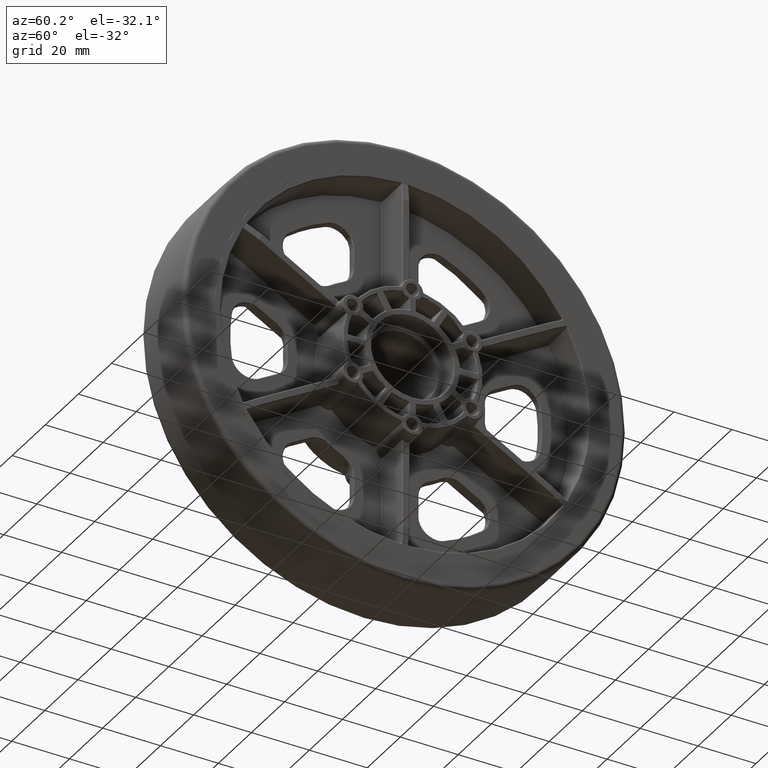
[diagram: clean part render]
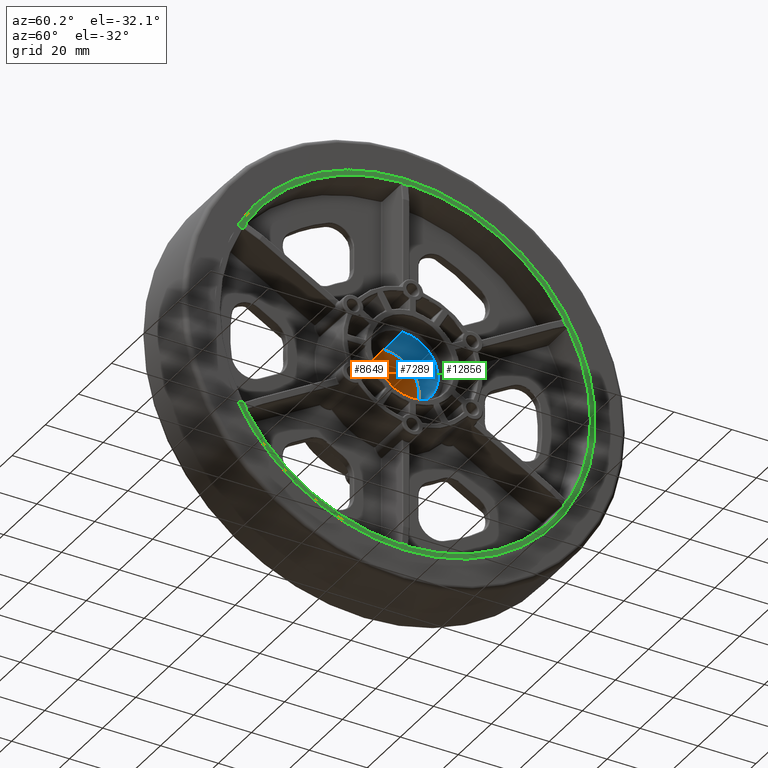
[diagram: same view with three faces highlighted in distinct colors, each labeled with its STEP entity id]
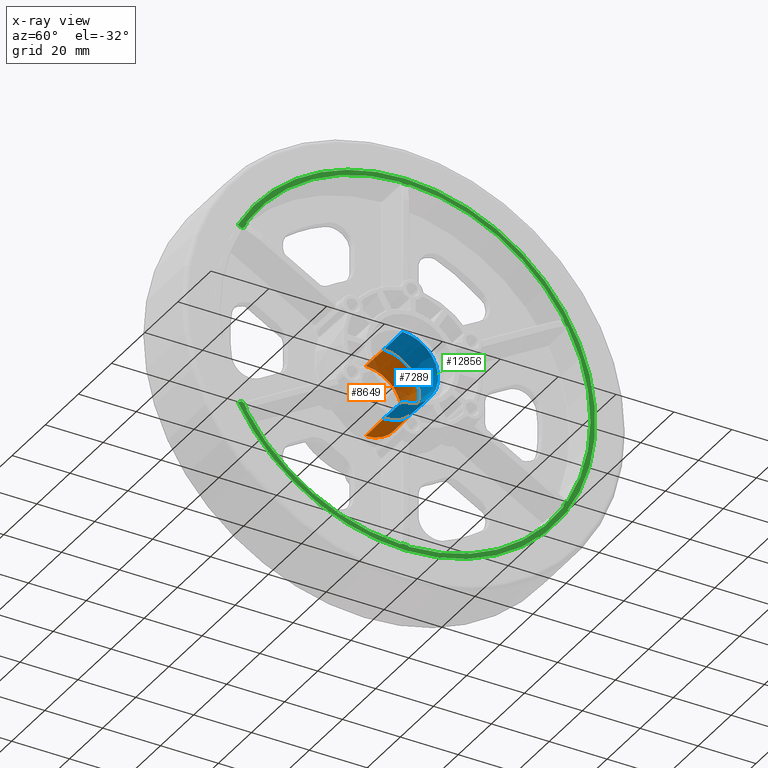
[diagram: x-ray of the same camera — body ghosted, the three highlighted faces saturated]
A machine part, auxiliary view with three faces highlighted in distinct colors.
The next image is the same camera in x-ray (body ghosted, the three faces saturated) — at least one of them is partly hidden behind the body in this view.
Their STEP definitions:

[orange] entity #8649 — the highlighted conical surface has half-angle 1 deg.
#264 = ORIENTED_EDGE ( 'NONE', *, *, #36902, .F. ) ;
#1474 = EDGE_CURVE ( 'NONE', #16485, #14684, #23789, .T. ) ;
#4276 = DIRECTION ( 'NONE',  ( -0.9998476951563912696, 0.0000000000000000000, -0.01745240643728354982 ) ) ;
#4451 = VERTEX_POINT ( 'NONE', #51529 ) ;
#4613 = CARTESIAN_POINT ( 'NONE',  ( 0.0000000000000000000, 0.0000000000000000000, 0.0000000000000000000 ) ) ;
#8212 = CARTESIAN_POINT ( 'NONE',  ( 0.0000000000000000000, 0.0000000000000000000, 0.0000000000000000000 ) ) ;
#8649 = ADVANCED_FACE ( 'NONE', ( #32223 ), #51179, .F. ) ;
#8663 = DIRECTION ( 'NONE',  ( 0.0000000000000000000, 0.0000000000000000000, -1.000000000000000000 ) ) ;
#11126 = CARTESIAN_POINT ( 'NONE',  ( -0.4374999999999998890, 0.0000000000000000000, 0.0000000000000000000 ) ) ;
#11814 = CIRCLE ( 'NONE', #37009, 0.4799999999999999822 ) ;
#11953 = ORIENTED_EDGE ( 'NONE', *, *, #1474, .F. ) ;
#12287 = DIRECTION ( 'NONE',  ( 0.0000000000000000000, 0.0000000000000000000, -1.000000000000000000 ) ) ;
#13447 = VERTEX_POINT ( 'NONE', #32547 ) ;
#14130 = LINE ( 'NONE', #48083, #33174 ) ;
#14684 = VERTEX_POINT ( 'NONE', #52382 ) ;
#15259 = DIRECTION ( 'NONE',  ( 0.0000000000000000000, 0.0000000000000000000, 1.000000000000000000 ) ) ;
#16485 = VERTEX_POINT ( 'NONE', #21773 ) ;
#19005 = LINE ( 'NONE', #28630, #31048 ) ;
#21773 = CARTESIAN_POINT ( 'NONE',  ( -0.4374999999999998890, 0.0000000000000000000, -0.4876365909060952353 ) ) ;
#23789 = CIRCLE ( 'NONE', #43391, 0.4876365909060952353 ) ;
#25049 = DIRECTION ( 'NONE',  ( -1.000000000000000000, -0.0000000000000000000, -0.0000000000000000000 ) ) ;
#28630 = CARTESIAN_POINT ( 'NONE',  ( 0.0000000000000000000, 0.0000000000000000000, -0.4799999999999999822 ) ) ;
#30900 = EDGE_LOOP ( 'NONE', ( #43871, #51825, #11953, #264 ) ) ;
#31048 = VECTOR ( 'NONE', #4276, 39.37007874015748143 ) ;
#32223 = FACE_OUTER_BOUND ( 'NONE', #30900, .T. ) ;
#32547 = CARTESIAN_POINT ( 'NONE',  ( 0.0000000000000000000, 0.0000000000000000000, -0.4799999999999999822 ) ) ;
#33174 = VECTOR ( 'NONE', #36077, 39.37007874015748143 ) ;
#36077 = DIRECTION ( 'NONE',  ( -0.9998476951563912696, -2.137303368083796319E-18, 0.01745240643728354982 ) ) ;
#36543 = AXIS2_PLACEMENT_3D ( 'NONE', #4613, #25049, #8663 ) ;
#36629 = DIRECTION ( 'NONE',  ( 1.000000000000000000, -0.0000000000000000000, 0.0000000000000000000 ) ) ;
#36902 = EDGE_CURVE ( 'NONE', #13447, #16485, #19005, .T. ) ;
#37009 = AXIS2_PLACEMENT_3D ( 'NONE', #8212, #36629, #12287 ) ;
#39183 = EDGE_CURVE ( 'NONE', #13447, #4451, #11814, .T. ) ;
#39515 = DIRECTION ( 'NONE',  ( 1.000000000000000000, -0.0000000000000000000, -0.0000000000000000000 ) ) ;
#43391 = AXIS2_PLACEMENT_3D ( 'NONE', #11126, #39515, #15259 ) ;
#43871 = ORIENTED_EDGE ( 'NONE', *, *, #39183, .T. ) ;
#48083 = CARTESIAN_POINT ( 'NONE',  ( 0.0000000000000000000, -5.878304635907294704E-17, 0.4799999999999999822 ) ) ;
#48572 = EDGE_CURVE ( 'NONE', #4451, #14684, #14130, .T. ) ;
#51179 = CONICAL_SURFACE ( 'NONE', #36543, 0.4799999999999999822, 0.01745329251994333364 ) ;
#51529 = CARTESIAN_POINT ( 'NONE',  ( 0.0000000000000000000, -5.925065268955031576E-17, 0.4799999999999999822 ) ) ;
#51825 = ORIENTED_EDGE ( 'NONE', *, *, #48572, .T. ) ;
#52382 = CARTESIAN_POINT ( 'NONE',  ( -0.4374999999999998890, -5.971825902002768447E-17, 0.4876365909060952353 ) ) ;

[blue] entity #7289 — the highlighted conical surface has half-angle 1 deg.
#3 = CARTESIAN_POINT ( 'NONE',  ( 0.0000000000000000000, 0.0000000000000000000, -0.4799999999999999822 ) ) ;
#1350 = EDGE_CURVE ( 'NONE', #44398, #26341, #47837, .T. ) ;
#2063 = EDGE_LOOP ( 'NONE', ( #35900, #29623, #36230, #15353 ) ) ;
#3139 = DIRECTION ( 'NONE',  ( 0.9998476951563912696, 2.137303368083796319E-18, 0.01745240643728354982 ) ) ;
#4451 = VERTEX_POINT ( 'NONE', #51529 ) ;
#4604 = CARTESIAN_POINT ( 'NONE',  ( 0.4374999999999998890, 0.0000000000000000000, -0.4876365909060952353 ) ) ;
#4738 = CARTESIAN_POINT ( 'NONE',  ( 0.4374999999999998890, 5.971825902002768447E-17, 0.4876365909060952353 ) ) ;
#7289 = ADVANCED_FACE ( 'NONE', ( #39266 ), #38010, .F. ) ;
#8212 = CARTESIAN_POINT ( 'NONE',  ( 0.0000000000000000000, 0.0000000000000000000, 0.0000000000000000000 ) ) ;
#10254 = CARTESIAN_POINT ( 'NONE',  ( 0.4374999999999998890, 0.0000000000000000000, 0.0000000000000000000 ) ) ;
#11528 = VECTOR ( 'NONE', #3139, 39.37007874015748143 ) ;
#11814 = CIRCLE ( 'NONE', #37009, 0.4799999999999999822 ) ;
#12287 = DIRECTION ( 'NONE',  ( 0.0000000000000000000, 0.0000000000000000000, -1.000000000000000000 ) ) ;
#13447 = VERTEX_POINT ( 'NONE', #32547 ) ;
#13510 = AXIS2_PLACEMENT_3D ( 'NONE', #10254, #38635, #14357 ) ;
#14357 = DIRECTION ( 'NONE',  ( 0.0000000000000000000, 0.0000000000000000000, -1.000000000000000000 ) ) ;
#15353 = ORIENTED_EDGE ( 'NONE', *, *, #1350, .T. ) ;
#17203 = DIRECTION ( 'NONE',  ( 1.000000000000000000, 0.0000000000000000000, 0.0000000000000000000 ) ) ;
#18345 = LINE ( 'NONE', #3, #39883 ) ;
#22393 = LINE ( 'NONE', #51503, #11528 ) ;
#24798 = EDGE_CURVE ( 'NONE', #4451, #26341, #22393, .T. ) ;
#26341 = VERTEX_POINT ( 'NONE', #4738 ) ;
#29623 = ORIENTED_EDGE ( 'NONE', *, *, #39183, .F. ) ;
#32547 = CARTESIAN_POINT ( 'NONE',  ( 0.0000000000000000000, 0.0000000000000000000, -0.4799999999999999822 ) ) ;
#33148 = CARTESIAN_POINT ( 'NONE',  ( 0.0000000000000000000, 0.0000000000000000000, 0.0000000000000000000 ) ) ;
#35900 = ORIENTED_EDGE ( 'NONE', *, *, #24798, .F. ) ;
#36230 = ORIENTED_EDGE ( 'NONE', *, *, #50941, .T. ) ;
#36629 = DIRECTION ( 'NONE',  ( 1.000000000000000000, -0.0000000000000000000, 0.0000000000000000000 ) ) ;
#37009 = AXIS2_PLACEMENT_3D ( 'NONE', #8212, #36629, #12287 ) ;
#38010 = CONICAL_SURFACE ( 'NONE', #40870, 0.4799999999999999822, 0.01745329251994333364 ) ;
#38635 = DIRECTION ( 'NONE',  ( 1.000000000000000000, 0.0000000000000000000, 0.0000000000000000000 ) ) ;
#39183 = EDGE_CURVE ( 'NONE', #13447, #4451, #11814, .T. ) ;
#39266 = FACE_OUTER_BOUND ( 'NONE', #2063, .T. ) ;
#39883 = VECTOR ( 'NONE', #40608, 39.37007874015748143 ) ;
#40608 = DIRECTION ( 'NONE',  ( 0.9998476951563912696, 0.0000000000000000000, -0.01745240643728354982 ) ) ;
#40870 = AXIS2_PLACEMENT_3D ( 'NONE', #33148, #17203, #45542 ) ;
#44398 = VERTEX_POINT ( 'NONE', #4604 ) ;
#45542 = DIRECTION ( 'NONE',  ( 0.0000000000000000000, 0.0000000000000000000, -1.000000000000000000 ) ) ;
#47837 = CIRCLE ( 'NONE', #13510, 0.4876365909060952353 ) ;
#50941 = EDGE_CURVE ( 'NONE', #13447, #44398, #18345, .T. ) ;
#51503 = CARTESIAN_POINT ( 'NONE',  ( 0.0000000000000000000, 5.878304635907294704E-17, 0.4799999999999999822 ) ) ;
#51529 = CARTESIAN_POINT ( 'NONE',  ( 0.0000000000000000000, -5.925065268955031576E-17, 0.4799999999999999822 ) ) ;

[green] entity #12856 — the highlighted planar face has unit normal (1, 0, 0).
#282 = CARTESIAN_POINT ( 'NONE',  ( 0.4999999999999998335, -2.156120226398902773, -1.307968000228008076 ) ) ;
#516 = EDGE_CURVE ( 'NONE', #50678, #34053, #28824, .T. ) ;
#575 = CARTESIAN_POINT ( 'NONE',  ( 0.4999999999999998335, -2.156119114459182473, 1.307987119954001631 ) ) ;
#832 = VERTEX_POINT ( 'NONE', #46297 ) ;
#839 = LINE ( 'NONE', #16447, #21207 ) ;
#1010 = CARTESIAN_POINT ( 'NONE',  ( 0.5000000000000001110, 2.195117347029624355, 1.220069078591785150 ) ) ;
#1276 = DIRECTION ( 'NONE',  ( -0.0000000000000000000, -0.5000000000000041078, 0.8660254037844363761 ) ) ;
#1332 = ORIENTED_EDGE ( 'NONE', *, *, #41671, .T. ) ;
#1367 = CARTESIAN_POINT ( 'NONE',  ( 0.5000000000000001110, -0.03525954105326465499, -2.508727532464108290 ) ) ;
#1370 = CIRCLE ( 'NONE', #42549, 2.591272467535891355 ) ;
#1538 = VERTEX_POINT ( 'NONE', #11461 ) ;
#1586 = VERTEX_POINT ( 'NONE', #44100 ) ;
#1609 = ORIENTED_EDGE ( 'NONE', *, *, #22883, .T. ) ;
#1665 = CARTESIAN_POINT ( 'NONE',  ( 0.5000000000000001110, 2.154462574500342065, 1.285816422887976485 ) ) ;
#1739 = CARTESIAN_POINT ( 'NONE',  ( 0.5000000000000001110, -2.150995815003495792, -1.286226182109982075 ) ) ;
#1809 = CARTESIAN_POINT ( 'NONE',  ( 0.5000000000000001110, -2.189402456221633653, -1.219703928172100271 ) ) ;
#1891 = CARTESIAN_POINT ( 'NONE',  ( 0.5000000000000001110, 2.217674207759096294, -1.204081314494640731 ) ) ;
#2197 = CARTESIAN_POINT ( 'NONE',  ( 0.5000000000000001110, -2.154992003760747732, 1.284899424509941879 ) ) ;
#2226 = CARTESIAN_POINT ( 'NONE',  ( 0.5000000000000001110, -2.172621774287353258, -1.254363766232079458 ) ) ;
#2257 = ORIENTED_EDGE ( 'NONE', *, *, #26386, .T. ) ;
#2274 = EDGE_CURVE ( 'NONE', #49886, #49392, #839, .T. ) ;
#2316 = LINE ( 'NONE', #2226, #42916 ) ;
#2445 = CARTESIAN_POINT ( 'NONE',  ( 0.5000000000000001110, 2.190251544814002749, -1.223828107954141320 ) ) ;
#2804 = ORIENTED_EDGE ( 'NONE', *, *, #24986, .T. ) ;
#3152 = CARTESIAN_POINT ( 'NONE',  ( 0.5000000000000001110, 0.06607209730502379419, -2.522602858484227273 ) ) ;
#3246 = CARTESIAN_POINT ( 'NONE',  ( 0.4999999999999998335, -0.05469051647344128075, -2.521247486683859229 ) ) ;
#3389 = EDGE_CURVE ( 'NONE', #17939, #9267, #21219, .T. ) ;
#3399 = DIRECTION ( 'NONE',  ( 1.000000000000000000, 0.0000000000000000000, 0.0000000000000000000 ) ) ;
#3451 = DIRECTION ( 'NONE',  ( -1.000000000000000000, -0.0000000000000000000, -0.0000000000000000000 ) ) ;
#3551 = CARTESIAN_POINT ( 'NONE',  ( 0.4999999999999998335, -2.200886059498011527, 1.218755255216299682 ) ) ;
#3945 = CARTESIAN_POINT ( 'NONE',  ( 0.5000000000000001110, -2.151602110454054806, -1.318521543989606748 ) ) ;
#4022 = DIRECTION ( 'NONE',  ( 0.0000000000000000000, 0.0000000000000000000, -1.000000000000000000 ) ) ;
#4165 = ORIENTED_EDGE ( 'NONE', *, *, #19998, .T. ) ;
#4185 = CARTESIAN_POINT ( 'NONE',  ( 0.5000000000000001110, 2.154598241549437798, 1.313632369430869140 ) ) ;
#4353 = CARTESIAN_POINT ( 'NONE',  ( 0.5000000000000001110, -2.154173734927134376, -1.290999223219661429 ) ) ;
#4658 = CARTESIAN_POINT ( 'NONE',  ( 0.5000000000000001110, -2.151602110454079675, 1.318521543989566558 ) ) ;
#4781 = VERTEX_POINT ( 'NONE', #51244 ) ;
#4878 = EDGE_CURVE ( 'NONE', #47271, #18611, #1370, .T. ) ;
#4989 = CARTESIAN_POINT ( 'NONE',  ( 0.5000000000000001110, -0.03525954105326465499, 2.508727532464108290 ) ) ;
#5187 = AXIS2_PLACEMENT_3D ( 'NONE', #9103, #37518, #13196 ) ;
#5213 = CARTESIAN_POINT ( 'NONE',  ( 0.5000000000000001110, 0.03840664121813733289, 2.505930110282031276 ) ) ;
#5532 = DIRECTION ( 'NONE',  ( -0.0000000000000000000, 1.000000000000000000, -0.0000000000000000000 ) ) ;
#5715 = VERTEX_POINT ( 'NONE', #43987 ) ;
#5795 = CARTESIAN_POINT ( 'NONE',  ( 0.5000000000000001110, -2.154992003760720642, -1.284899424509986732 ) ) ;
#5889 = CARTESIAN_POINT ( 'NONE',  ( 0.4999999999999998335, -2.200883519896847940, -1.218758323528691401 ) ) ;
#5998 = CARTESIAN_POINT ( 'NONE',  ( 0.5000000000000001110, 0.03525954105326465499, -2.508727532464108290 ) ) ;
#6045 = EDGE_CURVE ( 'NONE', #16631, #42178, #10725, .T. ) ;
#6449 = VERTEX_POINT ( 'NONE', #38071 ) ;
#6550 = CARTESIAN_POINT ( 'NONE',  ( 0.5000000000000001110, -0.06607209730502379419, 2.522602858484227273 ) ) ;
#6838 = ORIENTED_EDGE ( 'NONE', *, *, #40753, .F. ) ;
#6948 = VERTEX_POINT ( 'NONE', #17079 ) ;
#6952 = CARTESIAN_POINT ( 'NONE',  ( 0.5000000000000001110, 2.151602110454063244, 1.318521543989591871 ) ) ;
#7232 = CARTESIAN_POINT ( 'NONE',  ( 0.5000000000000001110, 0.04095125611060734111, -2.511068790221935298 ) ) ;
#7313 = CARTESIAN_POINT ( 'NONE',  ( 0.5000000000000001110, -0.03525954105326465499, -2.508727532464108290 ) ) ;
#7325 = CARTESIAN_POINT ( 'NONE',  ( 0.5000000000000001110, -0.06607209730502933143, -2.522602858484226829 ) ) ;
#7389 = DIRECTION ( 'NONE',  ( -0.0000000000000000000, 0.4999999999999979461, 0.8660254037844397068 ) ) ;
#7550 = ORIENTED_EDGE ( 'NONE', *, *, #45429, .T. ) ;
#7610 = CARTESIAN_POINT ( 'NONE',  ( 0.5000000000000001110, -2.189402456221659410, 1.219703928172054308 ) ) ;
#7683 = CARTESIAN_POINT ( 'NONE',  ( 0.5000000000000001110, 0.0000000000000000000, 0.0000000000000000000 ) ) ;
#7824 = ORIENTED_EDGE ( 'NONE', *, *, #28652, .T. ) ;
#7970 = CARTESIAN_POINT ( 'NONE',  ( 0.5000000000000001110, -2.189402456221633653, -1.219703928172100271 ) ) ;
#8008 = EDGE_CURVE ( 'NONE', #6948, #49392, #40293, .T. ) ;
#8069 = DIRECTION ( 'NONE',  ( -0.0000000000000000000, -1.000000000000000000, -0.0000000000000000000 ) ) ;
#8129 = VECTOR ( 'NONE', #5532, 39.37007874015748143 ) ;
#8187 = CARTESIAN_POINT ( 'NONE',  ( 0.4999999999999998335, -0.05467340233510467606, 2.521238889788908644 ) ) ;
#8216 = CARTESIAN_POINT ( 'NONE',  ( 0.5000000000000001110, 2.154169489947168170, -1.290992847519669029 ) ) ;
#8529 = ORIENTED_EDGE ( 'NONE', *, *, #3389, .F. ) ;
#8939 = EDGE_CURVE ( 'NONE', #50792, #21099, #43592, .T. ) ;
#9097 = CARTESIAN_POINT ( 'NONE',  ( 0.5000000000000001110, 0.03525954105326465499, 2.508727532464108290 ) ) ;
#9103 = CARTESIAN_POINT ( 'NONE',  ( 0.5000000000000001110, 0.0000000000000000000, 0.0000000000000000000 ) ) ;
#9267 = VERTEX_POINT ( 'NONE', #10712 ) ;
#9485 = CARTESIAN_POINT ( 'NONE',  ( 0.5000000000000001110, -2.190251544814011631, 1.223828107954126665 ) ) ;
#9956 = CARTESIAN_POINT ( 'NONE',  ( 0.5000000000000001110, -2.214941776302582266, -1.209113900494142246 ) ) ;
#10347 = CARTESIAN_POINT ( 'NONE',  ( 0.5000000000000001110, -2.153125537943494816, 1.286260326697566736 ) ) ;
#10382 =( BOUNDED_CURVE ( )  B_SPLINE_CURVE ( 3, ( #17895, #46214, #30112, #5795 ),
 .UNSPECIFIED., .F., .F. ) 
 B_SPLINE_CURVE_WITH_KNOTS ( ( 4, 4 ),
 ( 6.071808074703849201, 6.283185307179586232 ),
 .UNSPECIFIED. ) 
 CURVE ( )  GEOMETRIC_REPRESENTATION_ITEM ( )  RATIONAL_B_SPLINE_CURVE ( ( 1.000000000000000000, 0.9962801033636937698, 0.9962801033636937698, 1.000000000000000000 ) ) 
 REPRESENTATION_ITEM ( '' )  );
#10399 = ORIENTED_EDGE ( 'NONE', *, *, #35344, .T. ) ;
#10469 = CARTESIAN_POINT ( 'NONE',  ( 0.5000000000000001110, 2.189402456221642534, 1.219703928172084728 ) ) ;
#10537 = CARTESIAN_POINT ( 'NONE',  ( 0.5000000000000001110, -1.365923996832131609E-15, -2.458663194297837094E-15 ) ) ;
#10712 = CARTESIAN_POINT ( 'NONE',  ( 0.5000000000000001110, -2.190251544814011631, 1.223828107954126665 ) ) ;
#10725 = B_SPLINE_CURVE_WITH_KNOTS ( 'NONE', 3,
 ( #42342, #30151, #34238, #18111, #46424, #22194 ),
 .UNSPECIFIED., .F., .F.,
 ( 4, 2, 4 ),
 ( 1.084202172485504434E-18, 0.0004317745016532645048, 0.0008635490033065279254 ),
 .UNSPECIFIED. ) ;
#11017 = ORIENTED_EDGE ( 'NONE', *, *, #8008, .T. ) ;
#11091 = ORIENTED_EDGE ( 'NONE', *, *, #48907, .T. ) ;
#11134 = VECTOR ( 'NONE', #38918, 39.37007874015748854 ) ;
#11235 = B_SPLINE_CURVE_WITH_KNOTS ( 'NONE', 3,
 ( #24578, #4185, #12336, #40716, #16452, #44785 ),
 .UNSPECIFIED., .F., .F.,
 ( 4, 2, 4 ),
 ( 9.813077866773594792E-18, 0.0004369434395104968114, 0.0008738868790209838649 ),
 .UNSPECIFIED. ) ;
#11385 = LINE ( 'NONE', #37802, #20989 ) ;
#11461 = CARTESIAN_POINT ( 'NONE',  ( 0.5000000000000001110, 2.190251544813994311, 1.223828107954156863 ) ) ;
#11705 = CARTESIAN_POINT ( 'NONE',  ( 0.5000000000000001110, 2.150995815003514000, -1.286226182109952987 ) ) ;
#11778 = DIRECTION ( 'NONE',  ( 0.0000000000000000000, 0.0000000000000000000, -1.000000000000000000 ) ) ;
#12266 = CARTESIAN_POINT ( 'NONE',  ( 0.5000000000000001110, -0.04095125611060734111, 2.511068790221935298 ) ) ;
#12326 = CARTESIAN_POINT ( 'NONE',  ( 0.5000000000000001110, -2.151602110454054806, -1.318521543989606748 ) ) ;
#12336 = CARTESIAN_POINT ( 'NONE',  ( 0.4999999999999998335, 2.156120226398911655, 1.307968000227992755 ) ) ;
#12390 = LINE ( 'NONE', #10537, #11134 ) ;
#12621 = CARTESIAN_POINT ( 'NONE',  ( 0.5000000000000001110, -2.150995815003522882, 1.286226182109937666 ) ) ;
#12856 = ADVANCED_FACE ( 'NONE', ( #28097 ), #14159, .T. ) ;
#13167 = EDGE_LOOP ( 'NONE', ( #15434, #49312, #14445, #51859, #13669, #2804, #8529, #13224, #35486, #15093, #32041, #11017, #37017, #25601, #49209, #49373, #27564, #7824, #6838, #14934, #2257, #4165, #17796, #11091, #49691, #41205, #1609, #52571, #43165, #17310, #41761, #1332, #10399, #7550, #22696, #43130, #39361, #30511, #50134, #45609 ) ) ;
#13196 = DIRECTION ( 'NONE',  ( 0.0000000000000000000, 0.0000000000000000000, -1.000000000000000000 ) ) ;
#13224 = ORIENTED_EDGE ( 'NONE', *, *, #41543, .T. ) ;
#13338 = CARTESIAN_POINT ( 'NONE',  ( 0.5000000000000001110, -2.217674207759082528, -1.204081314494666266 ) ) ;
#13639 = CARTESIAN_POINT ( 'NONE',  ( 0.5000000000000001110, -2.190496887771907986, -1.221531250047323214 ) ) ;
#13669 = ORIENTED_EDGE ( 'NONE', *, *, #23232, .T. ) ;
#14124 = CARTESIAN_POINT ( 'NONE',  ( 0.4999999999999998335, 2.210793628734025074, -1.213270889560921217 ) ) ;
#14159 = PLANE ( 'NONE',  #28953 ) ;
#14441 = B_SPLINE_CURVE_WITH_KNOTS ( 'NONE', 3,
 ( #1891, #26245, #14124, #42482, #18239, #46560 ),
 .UNSPECIFIED., .F., .F.,
 ( 4, 2, 4 ),
 ( 3.469446951953614189E-18, 0.0004369434395104807110, 0.0008738868790209579525 ),
 .UNSPECIFIED. ) ;
#14445 = ORIENTED_EDGE ( 'NONE', *, *, #23158, .T. ) ;
#14805 = B_SPLINE_CURVE_WITH_KNOTS ( 'NONE', 3,
 ( #3152, #39514, #19348, #31558, #7232, #35650 ),
 .UNSPECIFIED., .F., .F.,
 ( 4, 2, 4 ),
 ( 0.0000000000000000000, 0.0004369434395104867825, 0.0008738868790209735650 ),
 .UNSPECIFIED. ) ;
#14934 = ORIENTED_EDGE ( 'NONE', *, *, #24267, .T. ) ;
#15093 = ORIENTED_EDGE ( 'NONE', *, *, #44251, .T. ) ;
#15157 = B_SPLINE_CURVE_WITH_KNOTS ( 'NONE', 3,
 ( #1809, #30201, #5889, #34292, #9956, #38352 ),
 .UNSPECIFIED., .F., .F.,
 ( 4, 2, 4 ),
 ( 0.0000000000000000000, 0.0004317745016532628785, 0.0008635490033065257569 ),
 .UNSPECIFIED. ) ;
#15172 = EDGE_CURVE ( 'NONE', #49886, #16631, #52288, .T. ) ;
#15321 = VERTEX_POINT ( 'NONE', #19077 ) ;
#15352 = CARTESIAN_POINT ( 'NONE',  ( 0.5000000000000001110, -0.03840664121813733289, -2.505930110282031276 ) ) ;
#15434 = ORIENTED_EDGE ( 'NONE', *, *, #4878, .T. ) ;
#15479 = CARTESIAN_POINT ( 'NONE',  ( 0.5000000000000001110, 0.0000000000000000000, 0.0000000000000000000 ) ) ;
#15512 = CARTESIAN_POINT ( 'NONE',  ( 0.5000000000000001110, -0.03840664121813733289, -2.505930110282031276 ) ) ;
#15654 = CARTESIAN_POINT ( 'NONE',  ( 0.5000000000000001110, -2.217674207759105176, 1.204081314494625188 ) ) ;
#15692 = VERTEX_POINT ( 'NONE', #51026 ) ;
#15732 = VERTEX_POINT ( 'NONE', #6550 ) ;
#15780 = EDGE_CURVE ( 'NONE', #51939, #47271, #48139, .T. ) ;
#15816 = VECTOR ( 'NONE', #47672, 39.37007874015748854 ) ;
#16024 = CARTESIAN_POINT ( 'NONE',  ( 0.5000000000000001110, 2.151602110454069905, -1.318521543989581213 ) ) ;
#16256 = CIRCLE ( 'NONE', #44867, 2.523467991410843769 ) ;
#16408 = CARTESIAN_POINT ( 'NONE',  ( 0.5000000000000001110, 2.154594242048095687, -1.313638895934414741 ) ) ;
#16447 = CARTESIAN_POINT ( 'NONE',  ( 0.5000000000000001110, 0.0000000000000000000, 2.508727532464108290 ) ) ;
#16452 = CARTESIAN_POINT ( 'NONE',  ( 0.5000000000000001110, 2.154173734927143702, 1.290999223219646996 ) ) ;
#16483 = VERTEX_POINT ( 'NONE', #37855 ) ;
#16631 = VERTEX_POINT ( 'NONE', #41608 ) ;
#16848 = CARTESIAN_POINT ( 'NONE',  ( 0.5000000000000001110, 2.154992003760737962, -1.284899424509956312 ) ) ;
#17016 = CARTESIAN_POINT ( 'NONE',  ( 0.5000000000000001110, 0.03525954105326465499, 2.508727532464108290 ) ) ;
#17079 = CARTESIAN_POINT ( 'NONE',  ( 0.5000000000000001110, -0.03840664121813726350, 2.505930110282032164 ) ) ;
#17173 = CARTESIAN_POINT ( 'NONE',  ( 0.5000000000000001110, 2.189402456221642534, 1.219703928172084728 ) ) ;
#17278 = B_SPLINE_CURVE_WITH_KNOTS ( 'NONE', 3,
 ( #12621, #36951, #24904, #575, #28981, #4658 ),
 .UNSPECIFIED., .F., .F.,
 ( 4, 2, 4 ),
 ( 0.0000000000000000000, 0.0004317745016532525786, 0.0008635490033065051571 ),
 .UNSPECIFIED. ) ;
#17295 = CARTESIAN_POINT ( 'NONE',  ( 0.5000000000000002220, 0.03631839957403969893, 2.508727532464107401 ) ) ;
#17310 = ORIENTED_EDGE ( 'NONE', *, *, #24656, .T. ) ;
#17351 = CARTESIAN_POINT ( 'NONE',  ( 0.4999999999999998335, 2.210809630932605963, 1.213260366729847606 ) ) ;
#17796 = ORIENTED_EDGE ( 'NONE', *, *, #19067, .T. ) ;
#17895 = CARTESIAN_POINT ( 'NONE',  ( 0.5000000000000001110, -2.150995815003495792, -1.286226182109982075 ) ) ;
#17939 = VERTEX_POINT ( 'NONE', #41267 ) ;
#18013 = VERTEX_POINT ( 'NONE', #46039 ) ;
#18095 = EDGE_CURVE ( 'NONE', #50678, #15692, #2316, .T. ) ;
#18111 = CARTESIAN_POINT ( 'NONE',  ( 0.4999999999999998335, 0.05469051647344127381, 2.521247486683859229 ) ) ;
#18239 = CARTESIAN_POINT ( 'NONE',  ( 0.5000000000000001110, 2.195124991037761042, -1.220069567002294297 ) ) ;
#18611 = VERTEX_POINT ( 'NONE', #33176 ) ;
#18986 = LINE ( 'NONE', #33920, #8129 ) ;
#19029 = EDGE_CURVE ( 'NONE', #38776, #15692, #10382, .T. ) ;
#19067 = EDGE_CURVE ( 'NONE', #49480, #5715, #14441, .T. ) ;
#19077 = CARTESIAN_POINT ( 'NONE',  ( 0.5000000000000001110, -0.03840664121813733289, -2.505930110282031276 ) ) ;
#19102 = B_SPLINE_CURVE_WITH_KNOTS ( 'NONE', 3,
 ( #17173, #1010, #41614, #17351, #45691, #21468 ),
 .UNSPECIFIED., .F., .F.,
 ( 4, 2, 4 ),
 ( 1.387778780781445676E-17, 0.0004317745016532583248, 0.0008635490033065027719 ),
 .UNSPECIFIED. ) ;
#19210 = DIRECTION ( 'NONE',  ( -1.000000000000000000, -0.0000000000000000000, -0.0000000000000000000 ) ) ;
#19348 = CARTESIAN_POINT ( 'NONE',  ( 0.4999999999999998335, 0.05467340233510468300, -2.521238889788908644 ) ) ;
#19564 = DIRECTION ( 'NONE',  ( 0.0000000000000000000, 0.0000000000000000000, -1.000000000000000000 ) ) ;
#19998 = EDGE_CURVE ( 'NONE', #1586, #49480, #41734, .T. ) ;
#20160 = EDGE_CURVE ( 'NONE', #24079, #47522, #14805, .T. ) ;
#20777 = CARTESIAN_POINT ( 'NONE',  ( 0.5000000000000001110, -0.03631839957403969199, 2.508727532464108290 ) ) ;
#20989 = VECTOR ( 'NONE', #1276, 39.37007874015747433 ) ;
#21099 = VERTEX_POINT ( 'NONE', #2445 ) ;
#21134 = CARTESIAN_POINT ( 'NONE',  ( 0.5000000000000001110, 2.153125537943485490, -1.286260326697581613 ) ) ;
#21149 = CARTESIAN_POINT ( 'NONE',  ( 0.5000000000000001110, -2.190780974074372445, -1.222911109576167110 ) ) ;
#21207 = VECTOR ( 'NONE', #8069, 39.37007874015748143 ) ;
#21219 = LINE ( 'NONE', #39860, #52161 ) ;
#21455 = EDGE_CURVE ( 'NONE', #4781, #6449, #12390, .T. ) ;
#21468 = CARTESIAN_POINT ( 'NONE',  ( 0.5000000000000001110, 2.217674207759090965, 1.204081314494650501 ) ) ;
#21890 = CARTESIAN_POINT ( 'NONE',  ( 0.5000000000000001110, 2.217674207759096294, -1.204081314494640731 ) ) ;
#21898 = EDGE_CURVE ( 'NONE', #34053, #51939, #15157, .T. ) ;
#22034 = CARTESIAN_POINT ( 'NONE',  ( 0.5000000000000001110, 0.0000000000000000000, 0.0000000000000000000 ) ) ;
#22194 = CARTESIAN_POINT ( 'NONE',  ( 0.5000000000000001110, 0.06607209730502933143, 2.522602858484226829 ) ) ;
#22497 = DIRECTION ( 'NONE',  ( -0.0000000000000000000, 0.5000000000000099920, -0.8660254037844328234 ) ) ;
#22696 = ORIENTED_EDGE ( 'NONE', *, *, #22700, .T. ) ;
#22700 = EDGE_CURVE ( 'NONE', #43949, #38776, #47807, .T. ) ;
#22883 = EDGE_CURVE ( 'NONE', #23266, #30668, #26794, .T. ) ;
#22982 = CARTESIAN_POINT ( 'NONE',  ( 0.5000000000000001110, -2.190251544813985873, -1.223828107954172184 ) ) ;
#23158 = EDGE_CURVE ( 'NONE', #34456, #4781, #27579, .T. ) ;
#23202 = B_SPLINE_CURVE_WITH_KNOTS ( 'NONE', 3,
 ( #15654, #43986, #27879, #3551, #31966, #7610 ),
 .UNSPECIFIED., .F., .F.,
 ( 4, 2, 4 ),
 ( 3.469446951953614189E-18, 0.0004369434395104852104, 0.0008738868790209669514 ),
 .UNSPECIFIED. ) ;
#23232 = EDGE_CURVE ( 'NONE', #6449, #23342, #23202, .T. ) ;
#23266 = VERTEX_POINT ( 'NONE', #11705 ) ;
#23342 = VERTEX_POINT ( 'NONE', #33369 ) ;
#23378 = CARTESIAN_POINT ( 'NONE',  ( 0.5000000000000001110, 2.190251544814002749, -1.223828107954141320 ) ) ;
#23450 = CARTESIAN_POINT ( 'NONE',  ( 0.5000000000000001110, 1.843997395723377623E-15, -3.414809992080329122E-15 ) ) ;
#23514 = CARTESIAN_POINT ( 'NONE',  ( 0.5000000000000001110, -0.03631839957403974056, -2.508727532464107401 ) ) ;
#23516 = VERTEX_POINT ( 'NONE', #50995 ) ;
#23862 = VERTEX_POINT ( 'NONE', #26917 ) ;
#23959 = VERTEX_POINT ( 'NONE', #39967 ) ;
#24079 = VERTEX_POINT ( 'NONE', #40837 ) ;
#24267 = EDGE_CURVE ( 'NONE', #1538, #16483, #41627, .T. ) ;
#24538 = CIRCLE ( 'NONE', #49671, 2.523467991410843769 ) ;
#24578 = CARTESIAN_POINT ( 'NONE',  ( 0.5000000000000001110, 2.151602110454063244, 1.318521543989591871 ) ) ;
#24656 = EDGE_CURVE ( 'NONE', #47522, #23959, #47133, .T. ) ;
#24904 = CARTESIAN_POINT ( 'NONE',  ( 0.4999999999999998335, -2.155917429198001667, 1.296641877236844431 ) ) ;
#24986 = EDGE_CURVE ( 'NONE', #23342, #9267, #43240, .T. ) ;
#25085 = CARTESIAN_POINT ( 'NONE',  ( 0.5000000000000001110, -2.277262139282266062, -1.236434450345470060 ) ) ;
#25348 = EDGE_CURVE ( 'NONE', #15732, #6948, #51846, .T. ) ;
#25601 = ORIENTED_EDGE ( 'NONE', *, *, #15172, .T. ) ;
#25707 = CARTESIAN_POINT ( 'NONE',  ( 0.5000000000000002220, -2.190496887771934187, 1.221531250047277473 ) ) ;
#26029 = CIRCLE ( 'NONE', #27174, 2.523467991410843769 ) ;
#26120 = DIRECTION ( 'NONE',  ( 0.0000000000000000000, 0.0000000000000000000, -1.000000000000000000 ) ) ;
#26245 = CARTESIAN_POINT ( 'NONE',  ( 0.5000000000000001110, 2.214938123935392689, -1.209120627415663618 ) ) ;
#26337 = CARTESIAN_POINT ( 'NONE',  ( 0.5000000000000001110, -0.06607209730502933143, -2.522602858484226829 ) ) ;
#26386 = EDGE_CURVE ( 'NONE', #16483, #1586, #19102, .T. ) ;
#26548 = CARTESIAN_POINT ( 'NONE',  ( 0.5000000000000001110, -2.154462574500360272, 1.285816422887946953 ) ) ;
#26623 = DIRECTION ( 'NONE',  ( 0.0000000000000000000, 0.0000000000000000000, -1.000000000000000000 ) ) ;
#26794 = B_SPLINE_CURVE_WITH_KNOTS ( 'NONE', 3,
 ( #36632, #8216, #32541, #40682, #16408, #44742 ),
 .UNSPECIFIED., .F., .F.,
 ( 4, 2, 4 ),
 ( 6.938893903907228378E-18, 0.0004317745016532594632, 0.0008635490033065119876 ),
 .UNSPECIFIED. ) ;
#26917 = CARTESIAN_POINT ( 'NONE',  ( 0.5000000000000001110, -2.150995815003522882, 1.286226182109937666 ) ) ;
#27091 =( BOUNDED_CURVE ( )  B_SPLINE_CURVE ( 3, ( #16848, #40592, #21134, #49410 ),
 .UNSPECIFIED., .F., .F. ) 
 B_SPLINE_CURVE_WITH_KNOTS ( ( 4, 4 ),
 ( 3.141592653589790007, 3.352969886065541250 ),
 .UNSPECIFIED. ) 
 CURVE ( )  GEOMETRIC_REPRESENTATION_ITEM ( )  RATIONAL_B_SPLINE_CURVE ( ( 1.000000000000000000, 0.9962801033636933257, 0.9962801033636933257, 1.000000000000000000 ) ) 
 REPRESENTATION_ITEM ( '' )  );
#27174 = AXIS2_PLACEMENT_3D ( 'NONE', #27778, #3451, #31863 ) ;
#27372 = EDGE_CURVE ( 'NONE', #30668, #24079, #31796, .T. ) ;
#27564 = ORIENTED_EDGE ( 'NONE', *, *, #35033, .T. ) ;
#27579 = CIRCLE ( 'NONE', #52489, 2.591272467535891355 ) ;
#27602 = CARTESIAN_POINT ( 'NONE',  ( 0.4999999999999998335, -0.04496609069887298055, -2.515400200765529615 ) ) ;
#27733 = CARTESIAN_POINT ( 'NONE',  ( 0.5000000000000001110, 0.0000000000000000000, 0.0000000000000000000 ) ) ;
#27778 = CARTESIAN_POINT ( 'NONE',  ( 0.5000000000000001110, 0.0000000000000000000, 0.0000000000000000000 ) ) ;
#27879 = CARTESIAN_POINT ( 'NONE',  ( 0.4999999999999998335, -2.210793628734033511, 1.213270889560906118 ) ) ;
#28097 = FACE_OUTER_BOUND ( 'NONE', #13167, .T. ) ;
#28292 = CARTESIAN_POINT ( 'NONE',  ( 0.5000000000000001110, -0.06607209730502379419, 2.522602858484227273 ) ) ;
#28367 = DIRECTION ( 'NONE',  ( -1.000000000000000000, -0.0000000000000000000, -0.0000000000000000000 ) ) ;
#28652 = EDGE_CURVE ( 'NONE', #832, #23516, #37079, .T. ) ;
#28699 = CARTESIAN_POINT ( 'NONE',  ( 0.4999999999999998335, -2.155916041762105717, -1.296645610752162447 ) ) ;
#28824 =( BOUNDED_CURVE ( )  B_SPLINE_CURVE ( 3, ( #37932, #21149, #13639, #41985 ),
 .UNSPECIFIED., .F., .T. ) 
 B_SPLINE_CURVE_WITH_KNOTS ( ( 4, 4 ),
 ( 3.141592653589807327, 3.352969886065518157 ),
 .UNSPECIFIED. ) 
 CURVE ( )  GEOMETRIC_REPRESENTATION_ITEM ( )  RATIONAL_B_SPLINE_CURVE ( ( 1.000000000000000000, 0.9962801033636946579, 0.9962801033636946579, 1.000000000000000000 ) ) 
 REPRESENTATION_ITEM ( '' )  );
#28953 = AXIS2_PLACEMENT_3D ( 'NONE', #42519, #50806, #26623 ) ;
#28981 = CARTESIAN_POINT ( 'NONE',  ( 0.5000000000000001110, -2.154594242048104125, 1.313638895934399420 ) ) ;
#29545 = CARTESIAN_POINT ( 'NONE',  ( 0.5000000000000002220, 0.03737134982844012021, 2.507791576744883955 ) ) ;
#29852 = AXIS2_PLACEMENT_3D ( 'NONE', #7683, #36112, #11778 ) ;
#29891 = CARTESIAN_POINT ( 'NONE',  ( 0.5000000000000001110, 2.153125537943477052, 1.286260326697596934 ) ) ;
#30059 = CARTESIAN_POINT ( 'NONE',  ( 0.5000000000000001110, 2.154992003760729968, 1.284899424509971633 ) ) ;
#30112 = CARTESIAN_POINT ( 'NONE',  ( 0.5000000000000001110, -2.154462574500332739, -1.285816422887990917 ) ) ;
#30151 = CARTESIAN_POINT ( 'NONE',  ( 0.5000000000000001110, 0.04094785708246510142, 2.511061926111448628 ) ) ;
#30201 = CARTESIAN_POINT ( 'NONE',  ( 0.5000000000000001110, -2.195117347029615473, -1.220069078591800693 ) ) ;
#30313 = CARTESIAN_POINT ( 'NONE',  ( 0.5000000000000001110, 0.03631839957403969199, -2.508727532464108290 ) ) ;
#30511 = ORIENTED_EDGE ( 'NONE', *, *, #516, .T. ) ;
#30668 = VERTEX_POINT ( 'NONE', #16024 ) ;
#30720 = CARTESIAN_POINT ( 'NONE',  ( 0.5000000000000001110, 2.190251544813994311, 1.223828107954156863 ) ) ;
#31227 = CARTESIAN_POINT ( 'NONE',  ( 0.5000000000000001110, 0.06607209730502933143, 2.522602858484226829 ) ) ;
#31251 =( BOUNDED_CURVE ( )  B_SPLINE_CURVE ( 3, ( #35429, #38932, #47602, #23378 ),
 .UNSPECIFIED., .F., .F. ) 
 B_SPLINE_CURVE_WITH_KNOTS ( ( 4, 4 ),
 ( 6.071808074703842095, 6.283185307179586232 ),
 .UNSPECIFIED. ) 
 CURVE ( )  GEOMETRIC_REPRESENTATION_ITEM ( )  RATIONAL_B_SPLINE_CURVE ( ( 1.000000000000000000, 0.9962801033636934367, 0.9962801033636934367, 1.000000000000000000 ) ) 
 REPRESENTATION_ITEM ( '' )  );
#31558 = CARTESIAN_POINT ( 'NONE',  ( 0.4999999999999998335, 0.04497001773587992052, -2.515400865968457911 ) ) ;
#31662 = CARTESIAN_POINT ( 'NONE',  ( 0.5000000000000001110, -0.06034753425450339881, -2.522752796428536115 ) ) ;
#31678 = B_SPLINE_CURVE_WITH_KNOTS ( 'NONE', 3,
 ( #15352, #43684, #27602, #3246, #31662, #7325 ),
 .UNSPECIFIED., .F., .F.,
 ( 4, 2, 4 ),
 ( 1.084202172485504434E-18, 0.0004317745016532642879, 0.0008635490033065274917 ),
 .UNSPECIFIED. ) ;
#31733 = CARTESIAN_POINT ( 'NONE',  ( 0.5000000000000001110, 2.172621774287370577, -1.254363766232048816 ) ) ;
#31796 = CIRCLE ( 'NONE', #5187, 2.523467991410843769 ) ;
#31818 = DIRECTION ( 'NONE',  ( 0.0000000000000000000, 0.0000000000000000000, -1.000000000000000000 ) ) ;
#31863 = DIRECTION ( 'NONE',  ( 0.0000000000000000000, 0.0000000000000000000, -1.000000000000000000 ) ) ;
#31966 = CARTESIAN_POINT ( 'NONE',  ( 0.5000000000000001110, -2.195124991037768591, 1.220069567002279420 ) ) ;
#32041 = ORIENTED_EDGE ( 'NONE', *, *, #25348, .T. ) ;
#32541 = CARTESIAN_POINT ( 'NONE',  ( 0.4999999999999998335, 2.155917429197992341, -1.296641877236859308 ) ) ;
#32581 = CARTESIAN_POINT ( 'NONE',  ( 0.5000000000000001110, -2.154598241549428916, -1.313632369430883573 ) ) ;
#32750 = CARTESIAN_POINT ( 'NONE',  ( 0.5000000000000001110, -2.150995815003495792, -1.286226182109982075 ) ) ;
#32801 = CARTESIAN_POINT ( 'NONE',  ( 0.5000000000000001110, -0.03840664121813726350, 2.505930110282032164 ) ) ;
#32821 = VECTOR ( 'NONE', #7389, 39.37007874015748854 ) ;
#33176 = CARTESIAN_POINT ( 'NONE',  ( 0.5000000000000001110, 0.0000000000000000000, -2.591272467535891355 ) ) ;
#33369 = CARTESIAN_POINT ( 'NONE',  ( 0.5000000000000001110, -2.189402456221659410, 1.219703928172054308 ) ) ;
#33811 = CARTESIAN_POINT ( 'NONE',  ( 0.5000000000000002220, -2.190780974074398646, 1.222911109576121369 ) ) ;
#33920 = CARTESIAN_POINT ( 'NONE',  ( 0.5000000000000001110, 0.0000000000000000000, -2.508727532464108290 ) ) ;
#33975 =( BOUNDED_CURVE ( )  B_SPLINE_CURVE ( 3, ( #2197, #26548, #10347, #38717 ),
 .UNSPECIFIED., .F., .F. ) 
 B_SPLINE_CURVE_WITH_KNOTS ( ( 4, 4 ),
 ( 3.141592653589807771, 3.352969886065537697 ),
 .UNSPECIFIED. ) 
 CURVE ( )  GEOMETRIC_REPRESENTATION_ITEM ( )  RATIONAL_B_SPLINE_CURVE ( ( 1.000000000000000000, 0.9962801033636941028, 0.9962801033636941028, 1.000000000000000000 ) ) 
 REPRESENTATION_ITEM ( '' )  );
#34053 = VERTEX_POINT ( 'NONE', #7970 ) ;
#34227 = CARTESIAN_POINT ( 'NONE',  ( 0.5000000000000001110, 0.03737134982844010633, -2.507791576744884399 ) ) ;
#34238 = CARTESIAN_POINT ( 'NONE',  ( 0.4999999999999998335, 0.04496609069887300136, 2.515400200765529615 ) ) ;
#34292 = CARTESIAN_POINT ( 'NONE',  ( 0.4999999999999998335, -2.210809630932597081, -1.213260366729864259 ) ) ;
#34456 = VERTEX_POINT ( 'NONE', #44460 ) ;
#34689 = VERTEX_POINT ( 'NONE', #1367 ) ;
#34818 = CARTESIAN_POINT ( 'NONE',  ( 0.5000000000000001110, 2.190496887771917756, 1.221531250047308337 ) ) ;
#35033 = EDGE_CURVE ( 'NONE', #38152, #832, #11235, .T. ) ;
#35344 = EDGE_CURVE ( 'NONE', #15321, #42926, #31678, .T. ) ;
#35429 = CARTESIAN_POINT ( 'NONE',  ( 0.5000000000000001110, 2.189402456221651416, -1.219703928172069629 ) ) ;
#35486 = ORIENTED_EDGE ( 'NONE', *, *, #48716, .T. ) ;
#35523 = CIRCLE ( 'NONE', #29852, 2.591272467535891355 ) ;
#35650 = CARTESIAN_POINT ( 'NONE',  ( 0.5000000000000001110, 0.03840664121813726350, -2.505930110282032164 ) ) ;
#35826 = DIRECTION ( 'NONE',  ( -0.0000000000000000000, -0.4999999999999918954, -0.8660254037844431485 ) ) ;
#35836 = AXIS2_PLACEMENT_3D ( 'NONE', #22034, #50301, #26120 ) ;
#36112 = DIRECTION ( 'NONE',  ( 1.000000000000000000, 0.0000000000000000000, 0.0000000000000000000 ) ) ;
#36605 = CARTESIAN_POINT ( 'NONE',  ( 0.4999999999999998335, -0.04497001773587993440, 2.515400865968457911 ) ) ;
#36632 = CARTESIAN_POINT ( 'NONE',  ( 0.5000000000000001110, 2.150995815003514000, -1.286226182109952987 ) ) ;
#36876 = CARTESIAN_POINT ( 'NONE',  ( 0.5000000000000001110, -0.03737134982844010633, 2.507791576744884399 ) ) ;
#36951 = CARTESIAN_POINT ( 'NONE',  ( 0.5000000000000001110, -2.154169489947176608, 1.290992847519653930 ) ) ;
#37017 = ORIENTED_EDGE ( 'NONE', *, *, #2274, .F. ) ;
#37079 =( BOUNDED_CURVE ( )  B_SPLINE_CURVE ( 3, ( #38034, #29891, #1665, #30059 ),
 .UNSPECIFIED., .F., .F. ) 
 B_SPLINE_CURVE_WITH_KNOTS ( ( 4, 4 ),
 ( 6.071808074703842983, 6.283185307179586232 ),
 .UNSPECIFIED. ) 
 CURVE ( )  GEOMETRIC_REPRESENTATION_ITEM ( )  RATIONAL_B_SPLINE_CURVE ( ( 1.000000000000000000, 0.9962801033636936587, 0.9962801033636936587, 1.000000000000000000 ) ) 
 REPRESENTATION_ITEM ( '' )  );
#37373 = EDGE_CURVE ( 'NONE', #50792, #23266, #27091, .T. ) ;
#37518 = DIRECTION ( 'NONE',  ( -1.000000000000000000, -0.0000000000000000000, -0.0000000000000000000 ) ) ;
#37802 = CARTESIAN_POINT ( 'NONE',  ( 0.5000000000000001110, 2.172621774287361696, 1.254363766232064359 ) ) ;
#37855 = CARTESIAN_POINT ( 'NONE',  ( 0.5000000000000001110, 2.189402456221642534, 1.219703928172084728 ) ) ;
#37868 =( BOUNDED_CURVE ( )  B_SPLINE_CURVE ( 3, ( #7313, #23514, #39767, #15512 ),
 .UNSPECIFIED., .F., .F. ) 
 B_SPLINE_CURVE_WITH_KNOTS ( ( 4, 4 ),
 ( 3.141592653589793116, 3.352969886065534144 ),
 .UNSPECIFIED. ) 
 CURVE ( )  GEOMETRIC_REPRESENTATION_ITEM ( )  RATIONAL_B_SPLINE_CURVE ( ( 1.000000000000000000, 0.9962801033636937698, 0.9962801033636937698, 1.000000000000000000 ) ) 
 REPRESENTATION_ITEM ( '' )  );
#37932 = CARTESIAN_POINT ( 'NONE',  ( 0.5000000000000001110, -2.190251544813985873, -1.223828107954172184 ) ) ;
#38034 = CARTESIAN_POINT ( 'NONE',  ( 0.5000000000000001110, 2.150995815003504674, 1.286226182109967420 ) ) ;
#38071 = CARTESIAN_POINT ( 'NONE',  ( 0.5000000000000001110, -2.217674207759105176, 1.204081314494625188 ) ) ;
#38152 = VERTEX_POINT ( 'NONE', #6952 ) ;
#38352 = CARTESIAN_POINT ( 'NONE',  ( 0.5000000000000001110, -2.217674207759082528, -1.204081314494666266 ) ) ;
#38717 = CARTESIAN_POINT ( 'NONE',  ( 0.5000000000000001110, -2.150995815003522882, 1.286226182109937666 ) ) ;
#38776 = VERTEX_POINT ( 'NONE', #1739 ) ;
#38918 = DIRECTION ( 'NONE',  ( 0.0000000000000000000, 0.8788200267676966604, -0.4771533931054297017 ) ) ;
#38932 = CARTESIAN_POINT ( 'NONE',  ( 0.5000000000000002220, 2.190496887771925749, -1.221531250047293016 ) ) ;
#39361 = ORIENTED_EDGE ( 'NONE', *, *, #18095, .F. ) ;
#39514 = CARTESIAN_POINT ( 'NONE',  ( 0.5000000000000001110, 0.06033988238594654302, -2.522752996846527207 ) ) ;
#39767 = CARTESIAN_POINT ( 'NONE',  ( 0.5000000000000001110, -0.03737134982844018960, -2.507791576744883955 ) ) ;
#39860 = CARTESIAN_POINT ( 'NONE',  ( 0.5000000000000001110, -2.172621774287379459, 1.254363766232034161 ) ) ;
#39967 = CARTESIAN_POINT ( 'NONE',  ( 0.5000000000000001110, 0.03525954105326465499, -2.508727532464108290 ) ) ;
#40293 =( BOUNDED_CURVE ( )  B_SPLINE_CURVE ( 3, ( #32801, #36876, #20777, #49057 ),
 .UNSPECIFIED., .F., .T. ) 
 B_SPLINE_CURVE_WITH_KNOTS ( ( 4, 4 ),
 ( 6.071808074703854530, 6.283185307179586232 ),
 .UNSPECIFIED. ) 
 CURVE ( )  GEOMETRIC_REPRESENTATION_ITEM ( )  RATIONAL_B_SPLINE_CURVE ( ( 1.000000000000000000, 0.9962801033636941028, 0.9962801033636941028, 1.000000000000000000 ) ) 
 REPRESENTATION_ITEM ( '' )  );
#40482 = CARTESIAN_POINT ( 'NONE',  ( 0.5000000000000001110, -0.06033988238594654302, 2.522752996846527207 ) ) ;
#40592 = CARTESIAN_POINT ( 'NONE',  ( 0.5000000000000001110, 2.154462574500351391, -1.285816422887961830 ) ) ;
#40658 = CARTESIAN_POINT ( 'NONE',  ( 0.5000000000000001110, -0.03840664121813726350, 2.505930110282032164 ) ) ;
#40682 = CARTESIAN_POINT ( 'NONE',  ( 0.4999999999999998335, 2.156119114459172703, -1.307987119954016952 ) ) ;
#40716 = CARTESIAN_POINT ( 'NONE',  ( 0.4999999999999998335, 2.155916041762114599, 1.296645610752147793 ) ) ;
#40753 = EDGE_CURVE ( 'NONE', #1538, #23516, #11385, .T. ) ;
#40837 = CARTESIAN_POINT ( 'NONE',  ( 0.5000000000000001110, 0.06607209730502379419, -2.522602858484227273 ) ) ;
#41205 = ORIENTED_EDGE ( 'NONE', *, *, #37373, .T. ) ;
#41249 = CARTESIAN_POINT ( 'NONE',  ( 0.5000000000000001110, -2.189402456221659410, 1.219703928172054308 ) ) ;
#41267 = CARTESIAN_POINT ( 'NONE',  ( 0.5000000000000001110, -2.154992003760747732, 1.284899424509941879 ) ) ;
#41366 = EDGE_CURVE ( 'NONE', #42178, #38152, #26029, .T. ) ;
#41395 = EDGE_CURVE ( 'NONE', #18611, #34456, #35523, .T. ) ;
#41543 = EDGE_CURVE ( 'NONE', #17939, #23862, #33975, .T. ) ;
#41608 = CARTESIAN_POINT ( 'NONE',  ( 0.5000000000000001110, 0.03840664121813733289, 2.505930110282031276 ) ) ;
#41614 = CARTESIAN_POINT ( 'NONE',  ( 0.4999999999999998335, 2.200883519896857266, 1.218758323528675414 ) ) ;
#41627 =( BOUNDED_CURVE ( )  B_SPLINE_CURVE ( 3, ( #30720, #50686, #34818, #10469 ),
 .UNSPECIFIED., .F., .F. ) 
 B_SPLINE_CURVE_WITH_KNOTS ( ( 4, 4 ),
 ( 3.141592653589788675, 3.352969886065529703 ),
 .UNSPECIFIED. ) 
 CURVE ( )  GEOMETRIC_REPRESENTATION_ITEM ( )  RATIONAL_B_SPLINE_CURVE ( ( 1.000000000000000000, 0.9962801033636937698, 0.9962801033636937698, 1.000000000000000000 ) ) 
 REPRESENTATION_ITEM ( '' )  );
#41671 = EDGE_CURVE ( 'NONE', #34689, #15321, #37868, .T. ) ;
#41734 = CIRCLE ( 'NONE', #35836, 2.523467991410843769 ) ;
#41761 = ORIENTED_EDGE ( 'NONE', *, *, #41976, .F. ) ;
#41976 = EDGE_CURVE ( 'NONE', #34689, #23959, #18986, .T. ) ;
#41985 = CARTESIAN_POINT ( 'NONE',  ( 0.5000000000000001110, -2.189402456221633653, -1.219703928172100271 ) ) ;
#42178 = VERTEX_POINT ( 'NONE', #31227 ) ;
#42342 = CARTESIAN_POINT ( 'NONE',  ( 0.5000000000000001110, 0.03840664121813733289, 2.505930110282031276 ) ) ;
#42482 = CARTESIAN_POINT ( 'NONE',  ( 0.4999999999999998335, 2.200886059498002645, -1.218755255216315003 ) ) ;
#42519 = CARTESIAN_POINT ( 'NONE',  ( 0.5000000000000001110, 0.0000000000000000000, 0.0000000000000000000 ) ) ;
#42549 = AXIS2_PLACEMENT_3D ( 'NONE', #27733, #3399, #31818 ) ;
#42916 = VECTOR ( 'NONE', #22497, 39.37007874015748854 ) ;
#42926 = VERTEX_POINT ( 'NONE', #26337 ) ;
#43130 = ORIENTED_EDGE ( 'NONE', *, *, #19029, .T. ) ;
#43165 = ORIENTED_EDGE ( 'NONE', *, *, #20160, .T. ) ;
#43240 =( BOUNDED_CURVE ( )  B_SPLINE_CURVE ( 3, ( #41249, #25707, #33811, #9485 ),
 .UNSPECIFIED., .F., .F. ) 
 B_SPLINE_CURVE_WITH_KNOTS ( ( 4, 4 ),
 ( 6.071808074703862523, 6.283185307179586232 ),
 .UNSPECIFIED. ) 
 CURVE ( )  GEOMETRIC_REPRESENTATION_ITEM ( )  RATIONAL_B_SPLINE_CURVE ( ( 1.000000000000000000, 0.9962801033636943249, 0.9962801033636943249, 1.000000000000000000 ) ) 
 REPRESENTATION_ITEM ( '' )  );
#43462 = CARTESIAN_POINT ( 'NONE',  ( 0.5000000000000001110, 0.0000000000000000000, 0.0000000000000000000 ) ) ;
#43592 = LINE ( 'NONE', #31733, #32821 ) ;
#43684 = CARTESIAN_POINT ( 'NONE',  ( 0.5000000000000001110, -0.04094785708246509448, -2.511061926111448628 ) ) ;
#43811 = DIRECTION ( 'NONE',  ( 1.000000000000000000, 0.0000000000000000000, 0.0000000000000000000 ) ) ;
#43949 = VERTEX_POINT ( 'NONE', #3945 ) ;
#43986 = CARTESIAN_POINT ( 'NONE',  ( 0.5000000000000001110, -2.214938123935401570, 1.209120627415648297 ) ) ;
#43987 = CARTESIAN_POINT ( 'NONE',  ( 0.5000000000000001110, 2.189402456221651416, -1.219703928172069629 ) ) ;
#44100 = CARTESIAN_POINT ( 'NONE',  ( 0.5000000000000001110, 2.217674207759090965, 1.204081314494650501 ) ) ;
#44157 = CARTESIAN_POINT ( 'NONE',  ( 0.5000000000000001110, 2.154992003760737962, -1.284899424509956312 ) ) ;
#44251 = EDGE_CURVE ( 'NONE', #18013, #15732, #16256, .T. ) ;
#44460 = CARTESIAN_POINT ( 'NONE',  ( 0.5000000000000001110, -3.178737605434805828E-16, 2.591272467535891355 ) ) ;
#44742 = CARTESIAN_POINT ( 'NONE',  ( 0.5000000000000001110, 2.151602110454069905, -1.318521543989581213 ) ) ;
#44785 = CARTESIAN_POINT ( 'NONE',  ( 0.5000000000000001110, 2.150995815003504674, 1.286226182109967420 ) ) ;
#44867 = AXIS2_PLACEMENT_3D ( 'NONE', #43462, #19210, #47532 ) ;
#45429 = EDGE_CURVE ( 'NONE', #42926, #43949, #24538, .T. ) ;
#45609 = ORIENTED_EDGE ( 'NONE', *, *, #15780, .T. ) ;
#45691 = CARTESIAN_POINT ( 'NONE',  ( 0.5000000000000001110, 2.214941776302590704, 1.209113900494126259 ) ) ;
#46039 = CARTESIAN_POINT ( 'NONE',  ( 0.5000000000000001110, -2.151602110454079675, 1.318521543989566558 ) ) ;
#46214 = CARTESIAN_POINT ( 'NONE',  ( 0.5000000000000001110, -2.153125537943467283, -1.286260326697611367 ) ) ;
#46297 = CARTESIAN_POINT ( 'NONE',  ( 0.5000000000000001110, 2.150995815003504674, 1.286226182109967420 ) ) ;
#46424 = CARTESIAN_POINT ( 'NONE',  ( 0.5000000000000001110, 0.06034753425450339881, 2.522752796428536115 ) ) ;
#46560 = CARTESIAN_POINT ( 'NONE',  ( 0.5000000000000001110, 2.189402456221651416, -1.219703928172069629 ) ) ;
#47133 =( BOUNDED_CURVE ( )  B_SPLINE_CURVE ( 3, ( #50454, #34227, #30313, #5998 ),
 .UNSPECIFIED., .F., .F. ) 
 B_SPLINE_CURVE_WITH_KNOTS ( ( 4, 4 ),
 ( 6.071808074703854530, 6.283185307179586232 ),
 .UNSPECIFIED. ) 
 CURVE ( )  GEOMETRIC_REPRESENTATION_ITEM ( )  RATIONAL_B_SPLINE_CURVE ( ( 1.000000000000000000, 0.9962801033636941028, 0.9962801033636941028, 1.000000000000000000 ) ) 
 REPRESENTATION_ITEM ( '' )  );
#47271 = VERTEX_POINT ( 'NONE', #25085 ) ;
#47522 = VERTEX_POINT ( 'NONE', #51737 ) ;
#47532 = DIRECTION ( 'NONE',  ( 0.0000000000000000000, 0.0000000000000000000, -1.000000000000000000 ) ) ;
#47602 = CARTESIAN_POINT ( 'NONE',  ( 0.5000000000000002220, 2.190780974074390652, -1.222911109576136912 ) ) ;
#47672 = DIRECTION ( 'NONE',  ( 0.0000000000000000000, -0.8788200267676891109, -0.4771533931054438016 ) ) ;
#47807 = B_SPLINE_CURVE_WITH_KNOTS ( 'NONE', 3,
 ( #12326, #32581, #282, #28699, #4353, #32750 ),
 .UNSPECIFIED., .F., .F.,
 ( 4, 2, 4 ),
 ( 0.0000000000000000000, 0.0004369434395105003350, 0.0008738868790210006701 ),
 .UNSPECIFIED. ) ;
#48139 = LINE ( 'NONE', #23450, #15816 ) ;
#48716 = EDGE_CURVE ( 'NONE', #23862, #18013, #17278, .T. ) ;
#48907 = EDGE_CURVE ( 'NONE', #5715, #21099, #31251, .T. ) ;
#49057 = CARTESIAN_POINT ( 'NONE',  ( 0.5000000000000001110, -0.03525954105326465499, 2.508727532464108290 ) ) ;
#49209 = ORIENTED_EDGE ( 'NONE', *, *, #6045, .T. ) ;
#49312 = ORIENTED_EDGE ( 'NONE', *, *, #41395, .T. ) ;
#49373 = ORIENTED_EDGE ( 'NONE', *, *, #41366, .T. ) ;
#49392 = VERTEX_POINT ( 'NONE', #4989 ) ;
#49410 = CARTESIAN_POINT ( 'NONE',  ( 0.5000000000000001110, 2.150995815003514000, -1.286226182109952987 ) ) ;
#49480 = VERTEX_POINT ( 'NONE', #21890 ) ;
#49671 = AXIS2_PLACEMENT_3D ( 'NONE', #52551, #28367, #4022 ) ;
#49691 = ORIENTED_EDGE ( 'NONE', *, *, #8939, .F. ) ;
#49886 = VERTEX_POINT ( 'NONE', #17016 ) ;
#50134 = ORIENTED_EDGE ( 'NONE', *, *, #21898, .T. ) ;
#50301 = DIRECTION ( 'NONE',  ( -1.000000000000000000, -0.0000000000000000000, -0.0000000000000000000 ) ) ;
#50454 = CARTESIAN_POINT ( 'NONE',  ( 0.5000000000000001110, 0.03840664121813726350, -2.505930110282032164 ) ) ;
#50678 = VERTEX_POINT ( 'NONE', #22982 ) ;
#50686 = CARTESIAN_POINT ( 'NONE',  ( 0.5000000000000001110, 2.190780974074382659, 1.222911109576152233 ) ) ;
#50792 = VERTEX_POINT ( 'NONE', #44157 ) ;
#50806 = DIRECTION ( 'NONE',  ( 1.000000000000000000, 0.0000000000000000000, 0.0000000000000000000 ) ) ;
#50995 = CARTESIAN_POINT ( 'NONE',  ( 0.5000000000000001110, 2.154992003760729968, 1.284899424509971633 ) ) ;
#51026 = CARTESIAN_POINT ( 'NONE',  ( 0.5000000000000001110, -2.154992003760720642, -1.284899424509986732 ) ) ;
#51244 = CARTESIAN_POINT ( 'NONE',  ( 0.5000000000000001110, -2.277262139282289155, 1.236434450345427649 ) ) ;
#51737 = CARTESIAN_POINT ( 'NONE',  ( 0.5000000000000001110, 0.03840664121813726350, -2.505930110282032164 ) ) ;
#51846 = B_SPLINE_CURVE_WITH_KNOTS ( 'NONE', 3,
 ( #28292, #40482, #8187, #36605, #12266, #40658 ),
 .UNSPECIFIED., .F., .F.,
 ( 4, 2, 4 ),
 ( 0.0000000000000000000, 0.0004369434395104869993, 0.0008738868790209739987 ),
 .UNSPECIFIED. ) ;
#51859 = ORIENTED_EDGE ( 'NONE', *, *, #21455, .T. ) ;
#51939 = VERTEX_POINT ( 'NONE', #13338 ) ;
#52161 = VECTOR ( 'NONE', #35826, 39.37007874015748854 ) ;
#52288 =( BOUNDED_CURVE ( )  B_SPLINE_CURVE ( 3, ( #9097, #17295, #29545, #5213 ),
 .UNSPECIFIED., .F., .T. ) 
 B_SPLINE_CURVE_WITH_KNOTS ( ( 4, 4 ),
 ( 3.141592653589793116, 3.352969886065526151 ),
 .UNSPECIFIED. ) 
 CURVE ( )  GEOMETRIC_REPRESENTATION_ITEM ( )  RATIONAL_B_SPLINE_CURVE ( ( 1.000000000000000000, 0.9962801033636938808, 0.9962801033636938808, 1.000000000000000000 ) ) 
 REPRESENTATION_ITEM ( '' )  );
#52489 = AXIS2_PLACEMENT_3D ( 'NONE', #15479, #43811, #19564 ) ;
#52551 = CARTESIAN_POINT ( 'NONE',  ( 0.5000000000000001110, 0.0000000000000000000, 0.0000000000000000000 ) ) ;
#52571 = ORIENTED_EDGE ( 'NONE', *, *, #27372, .T. ) ;